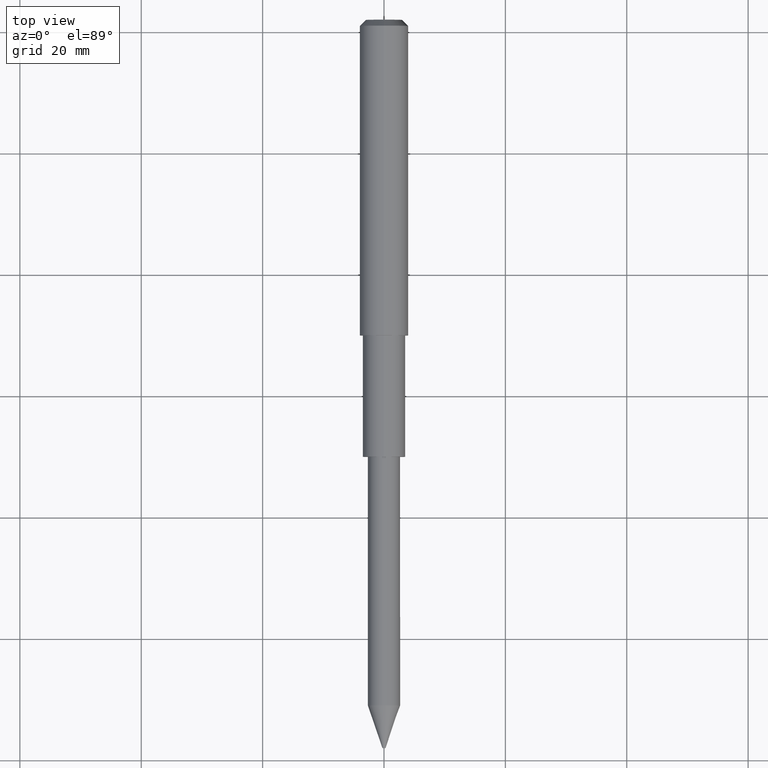
[diagram: clean part render]
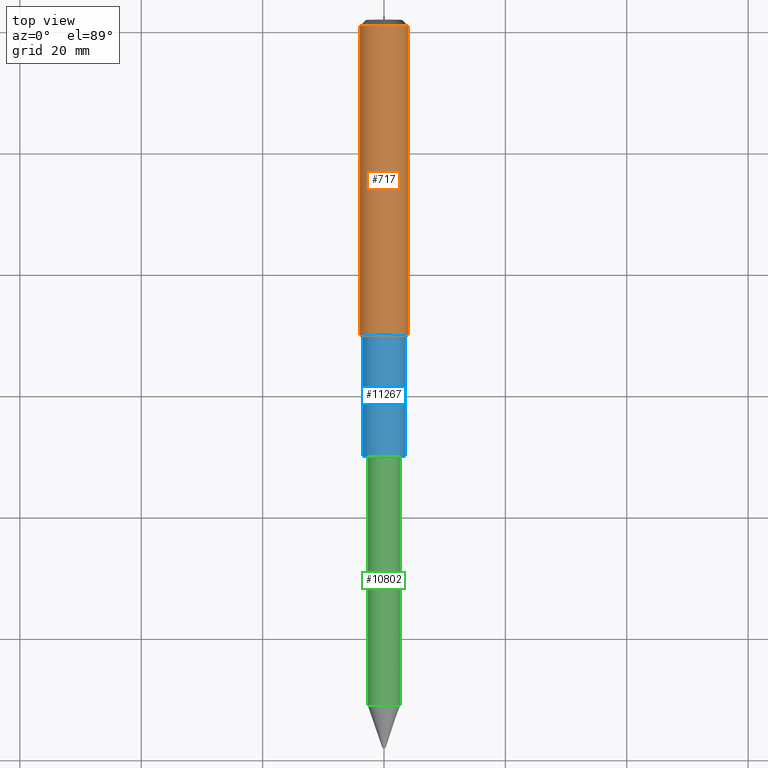
[diagram: same view with three faces highlighted in distinct colors, each labeled with its STEP entity id]
A machine part, top view with three faces highlighted in distinct colors.
Their STEP definitions:

[orange] entity #717 — the highlighted cylindrical surface (bore or boss wall) has radius 4 mm, axis along (-0, -1, -0).
#60 = AXIS2_PLACEMENT_3D ( 'NONE', #14639, #7681, #8838 ) ;
#63 = DIRECTION ( 'NONE',  ( -0.0000000000000000000, -1.000000000000000000, -0.0000000000000000000 ) ) ;
#662 = CYLINDRICAL_SURFACE ( 'NONE', #6838, 4.000000000000000000 ) ;
#717 = ADVANCED_FACE ( 'NONE', ( #13811, #12161 ), #662, .T. ) ;
#900 = ORIENTED_EDGE ( 'NONE', *, *, #7641, .T. ) ;
#1512 = CARTESIAN_POINT ( 'NONE',  ( 0.0000000000000000000, 61.00000000000008500, 4.000000000000000000 ) ) ;
#3224 = ORIENTED_EDGE ( 'NONE', *, *, #5193, .T. ) ;
#3950 = VERTEX_POINT ( 'NONE', #5016 ) ;
#5016 = CARTESIAN_POINT ( 'NONE',  ( 0.0000000000000000000, 10.00000000000000000, 4.000000000000000000 ) ) ;
#5193 = EDGE_CURVE ( 'NONE', #7047, #7047, #13106, .T. ) ;
#6838 = AXIS2_PLACEMENT_3D ( 'NONE', #14277, #63, #9700 ) ;
#7047 = VERTEX_POINT ( 'NONE', #1512 ) ;
#7519 = DIRECTION ( 'NONE',  ( 0.0000000000000000000, 1.000000000000000000, 0.0000000000000000000 ) ) ;
#7641 = EDGE_CURVE ( 'NONE', #3950, #3950, #9788, .T. ) ;
#7681 = DIRECTION ( 'NONE',  ( 0.0000000000000000000, -1.000000000000000000, 0.0000000000000000000 ) ) ;
#8652 = EDGE_LOOP ( 'NONE', ( #900 ) ) ;
#8838 = DIRECTION ( 'NONE',  ( 0.0000000000000000000, 0.0000000000000000000, 1.000000000000000000 ) ) ;
#9700 = DIRECTION ( 'NONE',  ( 0.0000000000000000000, 0.0000000000000000000, -1.000000000000000000 ) ) ;
#9710 = DIRECTION ( 'NONE',  ( 0.0000000000000000000, 0.0000000000000000000, 1.000000000000000000 ) ) ;
#9788 = CIRCLE ( 'NONE', #10575, 4.000000000000000000 ) ;
#10575 = AXIS2_PLACEMENT_3D ( 'NONE', #10931, #7519, #9710 ) ;
#10931 = CARTESIAN_POINT ( 'NONE',  ( 0.0000000000000000000, 10.00000000000000000, 0.0000000000000000000 ) ) ;
#12161 = FACE_OUTER_BOUND ( 'NONE', #8652, .T. ) ;
#13106 = CIRCLE ( 'NONE', #60, 4.000000000000000000 ) ;
#13431 = EDGE_LOOP ( 'NONE', ( #3224 ) ) ;
#13811 = FACE_OUTER_BOUND ( 'NONE', #13431, .T. ) ;
#14277 = CARTESIAN_POINT ( 'NONE',  ( 0.0000000000000000000, 62.00000000000000000, 0.0000000000000000000 ) ) ;
#14639 = CARTESIAN_POINT ( 'NONE',  ( 0.0000000000000000000, 61.00000000000008500, 0.0000000000000000000 ) ) ;

[blue] entity #11267 — the highlighted cylindrical surface (bore or boss wall) has radius 3.5 mm, axis along (-0, -1, -0).
#386 = EDGE_CURVE ( 'NONE', #10857, #10857, #13981, .T. ) ;
#645 = CARTESIAN_POINT ( 'NONE',  ( 0.0000000000000000000, -10.00000000000000000, 3.500000000000000000 ) ) ;
#2229 = EDGE_LOOP ( 'NONE', ( #8589 ) ) ;
#3405 = EDGE_LOOP ( 'NONE', ( #10777 ) ) ;
#4625 = EDGE_CURVE ( 'NONE', #8327, #8327, #14024, .T. ) ;
#5766 = DIRECTION ( 'NONE',  ( -0.0000000000000000000, -1.000000000000000000, -0.0000000000000000000 ) ) ;
#6133 = DIRECTION ( 'NONE',  ( 0.0000000000000000000, 0.0000000000000000000, 1.000000000000000000 ) ) ;
#6221 = AXIS2_PLACEMENT_3D ( 'NONE', #11941, #13118, #6133 ) ;
#7634 = CYLINDRICAL_SURFACE ( 'NONE', #8324, 3.500000000000000000 ) ;
#7655 = CARTESIAN_POINT ( 'NONE',  ( 0.0000000000000000000, 10.00000000000000000, 3.500000000000000000 ) ) ;
#8117 = DIRECTION ( 'NONE',  ( 0.0000000000000000000, 0.0000000000000000000, -1.000000000000000000 ) ) ;
#8324 = AXIS2_PLACEMENT_3D ( 'NONE', #9079, #5766, #8117 ) ;
#8327 = VERTEX_POINT ( 'NONE', #645 ) ;
#8589 = ORIENTED_EDGE ( 'NONE', *, *, #4625, .F. ) ;
#9079 = CARTESIAN_POINT ( 'NONE',  ( 0.0000000000000000000, 19.89949493661166700, 0.0000000000000000000 ) ) ;
#9879 = DIRECTION ( 'NONE',  ( 0.0000000000000000000, 1.000000000000000000, 0.0000000000000000000 ) ) ;
#10181 = FACE_OUTER_BOUND ( 'NONE', #2229, .T. ) ;
#10777 = ORIENTED_EDGE ( 'NONE', *, *, #386, .F. ) ;
#10857 = VERTEX_POINT ( 'NONE', #7655 ) ;
#11267 = ADVANCED_FACE ( 'NONE', ( #14190, #10181 ), #7634, .T. ) ;
#11897 = CARTESIAN_POINT ( 'NONE',  ( 0.0000000000000000000, 10.00000000000000000, 0.0000000000000000000 ) ) ;
#11941 = CARTESIAN_POINT ( 'NONE',  ( 0.0000000000000000000, -10.00000000000000000, 0.0000000000000000000 ) ) ;
#12154 = DIRECTION ( 'NONE',  ( 0.0000000000000000000, 0.0000000000000000000, 1.000000000000000000 ) ) ;
#13118 = DIRECTION ( 'NONE',  ( -0.0000000000000000000, -1.000000000000000000, -0.0000000000000000000 ) ) ;
#13353 = AXIS2_PLACEMENT_3D ( 'NONE', #11897, #9879, #12154 ) ;
#13981 = CIRCLE ( 'NONE', #13353, 3.500000000000000000 ) ;
#14024 = CIRCLE ( 'NONE', #6221, 3.500000000000000000 ) ;
#14190 = FACE_OUTER_BOUND ( 'NONE', #3405, .T. ) ;

[green] entity #10802 — the highlighted cylindrical surface (bore or boss wall) has radius 2.65 mm, axis along (-0, 1, -0).
#344 = CARTESIAN_POINT ( 'NONE',  ( -2.649999999999992800, -50.99999999999999300, 0.0000000000000000000 ) ) ;
#2692 = CARTESIAN_POINT ( 'NONE',  ( 4.336808689942019700E-016, -10.00000000000000000, 2.650000000000000800 ) ) ;
#2904 = EDGE_LOOP ( 'NONE', ( #7320 ) ) ;
#4799 = CARTESIAN_POINT ( 'NONE',  ( 4.336808689942017700E-016, -9.999999999999998200, 0.0000000000000000000 ) ) ;
#5350 = EDGE_CURVE ( 'NONE', #7791, #7791, #12756, .T. ) ;
#7000 = DIRECTION ( 'NONE',  ( -1.261863993018077000E-016, 1.000000000000000000, -0.0000000000000000000 ) ) ;
#7176 = DIRECTION ( 'NONE',  ( -1.000000000000000000, 0.0000000000000000000, 0.0000000000000000000 ) ) ;
#7320 = ORIENTED_EDGE ( 'NONE', *, *, #5350, .T. ) ;
#7791 = VERTEX_POINT ( 'NONE', #344 ) ;
#8470 = FACE_OUTER_BOUND ( 'NONE', #2904, .T. ) ;
#8719 = EDGE_LOOP ( 'NONE', ( #14848 ) ) ;
#8805 = AXIS2_PLACEMENT_3D ( 'NONE', #4799, #11789, #7176 ) ;
#9639 = DIRECTION ( 'NONE',  ( -0.0000000000000000000, -1.000000000000000000, -0.0000000000000000000 ) ) ;
#9864 = CYLINDRICAL_SURFACE ( 'NONE', #8805, 2.650000000000000800 ) ;
#10425 = CARTESIAN_POINT ( 'NONE',  ( 5.607323240368317600E-015, -50.99999999999999300, 0.0000000000000000000 ) ) ;
#10802 = ADVANCED_FACE ( 'NONE', ( #11567, #8470 ), #9864, .T. ) ;
#11103 = AXIS2_PLACEMENT_3D ( 'NONE', #14267, #9639, #11875 ) ;
#11567 = FACE_OUTER_BOUND ( 'NONE', #8719, .T. ) ;
#11765 = VERTEX_POINT ( 'NONE', #2692 ) ;
#11789 = DIRECTION ( 'NONE',  ( -1.261863993018077000E-016, 1.000000000000000000, -0.0000000000000000000 ) ) ;
#11875 = DIRECTION ( 'NONE',  ( 0.0000000000000000000, 0.0000000000000000000, 1.000000000000000000 ) ) ;
#12756 = CIRCLE ( 'NONE', #14123, 2.649999999999998100 ) ;
#12846 = DIRECTION ( 'NONE',  ( -1.000000000000000000, 0.0000000000000000000, 0.0000000000000000000 ) ) ;
#13013 = EDGE_CURVE ( 'NONE', #11765, #11765, #13263, .T. ) ;
#13263 = CIRCLE ( 'NONE', #11103, 2.650000000000000800 ) ;
#14123 = AXIS2_PLACEMENT_3D ( 'NONE', #10425, #7000, #12846 ) ;
#14267 = CARTESIAN_POINT ( 'NONE',  ( 4.336808689942019700E-016, -10.00000000000000000, 0.0000000000000000000 ) ) ;
#14848 = ORIENTED_EDGE ( 'NONE', *, *, #13013, .T. ) ;